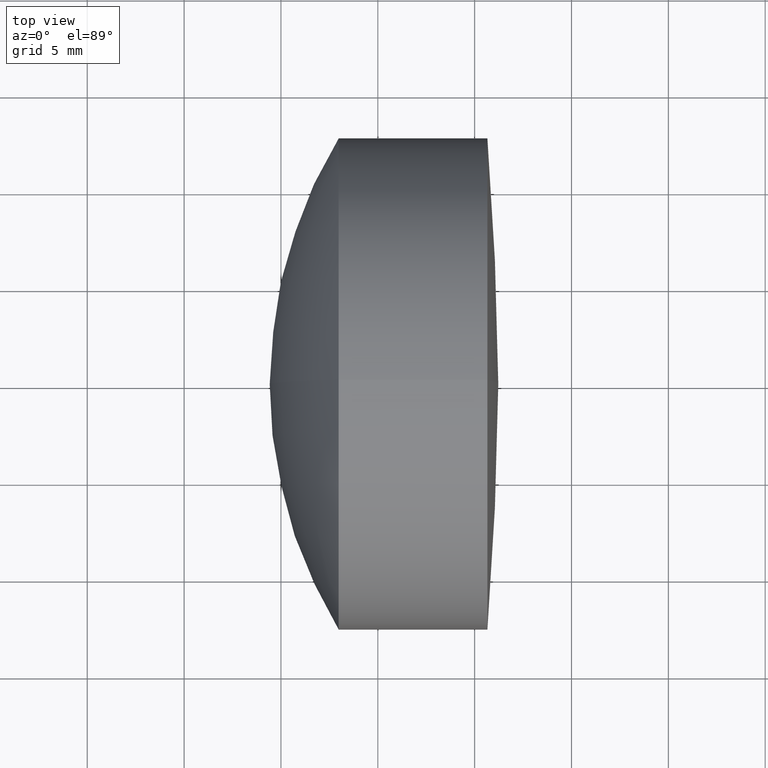
[diagram: clean part render]
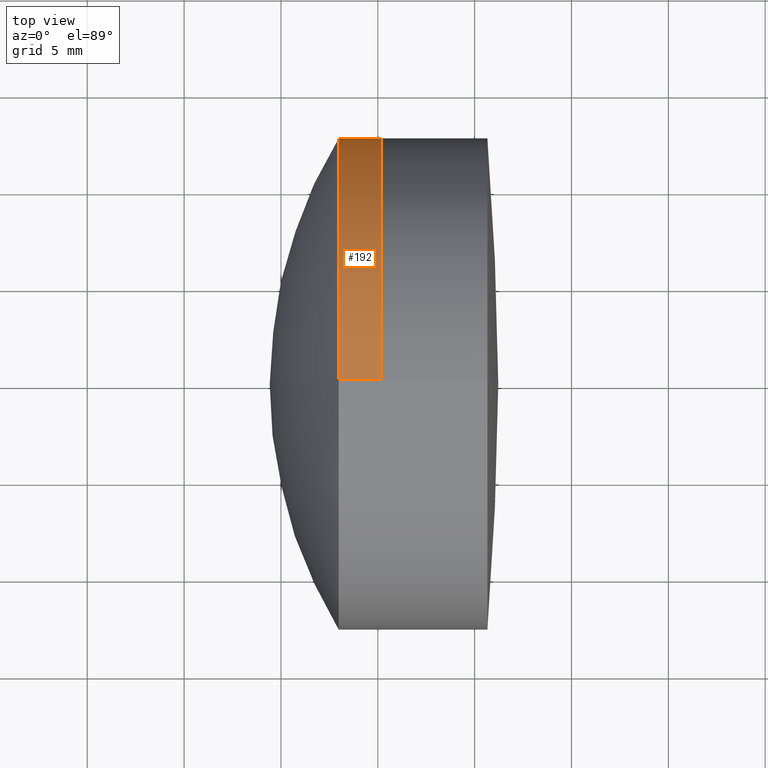
[diagram: same view with one face highlighted and labeled with its STEP entity id]
A machine part, top view. The second image highlights one B-rep face of the part: STEP entity #192.
In plain terms, the highlighted cylindrical surface (partial cylindrical patch) has radius 12.7 mm, axis along (-1, -0, -0).
Its self-contained STEP definition (entity closure, byte-faithful):
#6 = VERTEX_POINT ( 'NONE', #286 ) ;
#8 = CARTESIAN_POINT ( 'NONE',  ( -0.8160621761658039000, 1.555301434917138400E-015, -12.69999999999999900 ) ) ;
#27 = CYLINDRICAL_SURFACE ( 'NONE', #123, 12.69999999999999900 ) ;
#33 = VECTOR ( 'NONE', #57, 1000.000000000000000 ) ;
#45 = FACE_OUTER_BOUND ( 'NONE', #216, .T. ) ;
#49 = CARTESIAN_POINT ( 'NONE',  ( 25.16764040434280100, 0.0000000000000000000, 12.69999999999999900 ) ) ;
#55 = VERTEX_POINT ( 'NONE', #336 ) ;
#57 = DIRECTION ( 'NONE',  ( -1.000000000000000000, -0.0000000000000000000, -0.0000000000000000000 ) ) ;
#59 = DIRECTION ( 'NONE',  ( -1.000000000000000000, -0.0000000000000000000, -0.0000000000000000000 ) ) ;
#93 = EDGE_CURVE ( 'NONE', #149, #55, #146, .T. ) ;
#104 = CARTESIAN_POINT ( 'NONE',  ( -0.8160621761658039000, 0.0000000000000000000, 0.0000000000000000000 ) ) ;
#120 = VERTEX_POINT ( 'NONE', #269 ) ;
#123 = AXIS2_PLACEMENT_3D ( 'NONE', #104, #207, #323 ) ;
#137 = CARTESIAN_POINT ( 'NONE',  ( -0.8160621761658039000, 0.0000000000000000000, 12.69999999999999900 ) ) ;
#146 = CIRCLE ( 'NONE', #264, 12.69999999999999900 ) ;
#149 = VERTEX_POINT ( 'NONE', #49 ) ;
#155 = CIRCLE ( 'NONE', #194, 12.69999999999999900 ) ;
#162 = ORIENTED_EDGE ( 'NONE', *, *, #305, .T. ) ;
#170 = LINE ( 'NONE', #137, #33 ) ;
#192 = ADVANCED_FACE ( 'NONE', ( #45 ), #27, .T. ) ;
#194 = AXIS2_PLACEMENT_3D ( 'NONE', #261, #233, #270 ) ;
#207 = DIRECTION ( 'NONE',  ( -1.000000000000000000, -0.0000000000000000000, -0.0000000000000000000 ) ) ;
#216 = EDGE_LOOP ( 'NONE', ( #346, #162, #311, #325 ) ) ;
#233 = DIRECTION ( 'NONE',  ( -1.000000000000000000, -0.0000000000000000000, -0.0000000000000000000 ) ) ;
#247 = DIRECTION ( 'NONE',  ( 0.0000000000000000000, 0.0000000000000000000, 1.000000000000000000 ) ) ;
#261 = CARTESIAN_POINT ( 'NONE',  ( 22.98076566478077600, 0.0000000000000000000, 0.0000000000000000000 ) ) ;
#264 = AXIS2_PLACEMENT_3D ( 'NONE', #289, #344, #247 ) ;
#268 = VECTOR ( 'NONE', #59, 1000.000000000000000 ) ;
#269 = CARTESIAN_POINT ( 'NONE',  ( 22.98076566478077300, 0.0000000000000000000, 12.69999999999999900 ) ) ;
#270 = DIRECTION ( 'NONE',  ( 0.0000000000000000000, 0.0000000000000000000, 1.000000000000000000 ) ) ;
#279 = EDGE_CURVE ( 'NONE', #149, #120, #170, .T. ) ;
#286 = CARTESIAN_POINT ( 'NONE',  ( 22.98076566478077300, 1.555301434917138400E-015, -12.69999999999999900 ) ) ;
#289 = CARTESIAN_POINT ( 'NONE',  ( 25.16764040434280100, 0.0000000000000000000, 0.0000000000000000000 ) ) ;
#297 = EDGE_CURVE ( 'NONE', #120, #6, #155, .T. ) ;
#305 = EDGE_CURVE ( 'NONE', #55, #6, #319, .T. ) ;
#311 = ORIENTED_EDGE ( 'NONE', *, *, #297, .F. ) ;
#319 = LINE ( 'NONE', #8, #268 ) ;
#323 = DIRECTION ( 'NONE',  ( 0.0000000000000000000, 0.0000000000000000000, 1.000000000000000000 ) ) ;
#325 = ORIENTED_EDGE ( 'NONE', *, *, #279, .F. ) ;
#336 = CARTESIAN_POINT ( 'NONE',  ( 25.16764040434280100, 1.555301434917138400E-015, -12.69999999999999900 ) ) ;
#344 = DIRECTION ( 'NONE',  ( -1.000000000000000000, -0.0000000000000000000, -0.0000000000000000000 ) ) ;
#346 = ORIENTED_EDGE ( 'NONE', *, *, #93, .T. ) ;